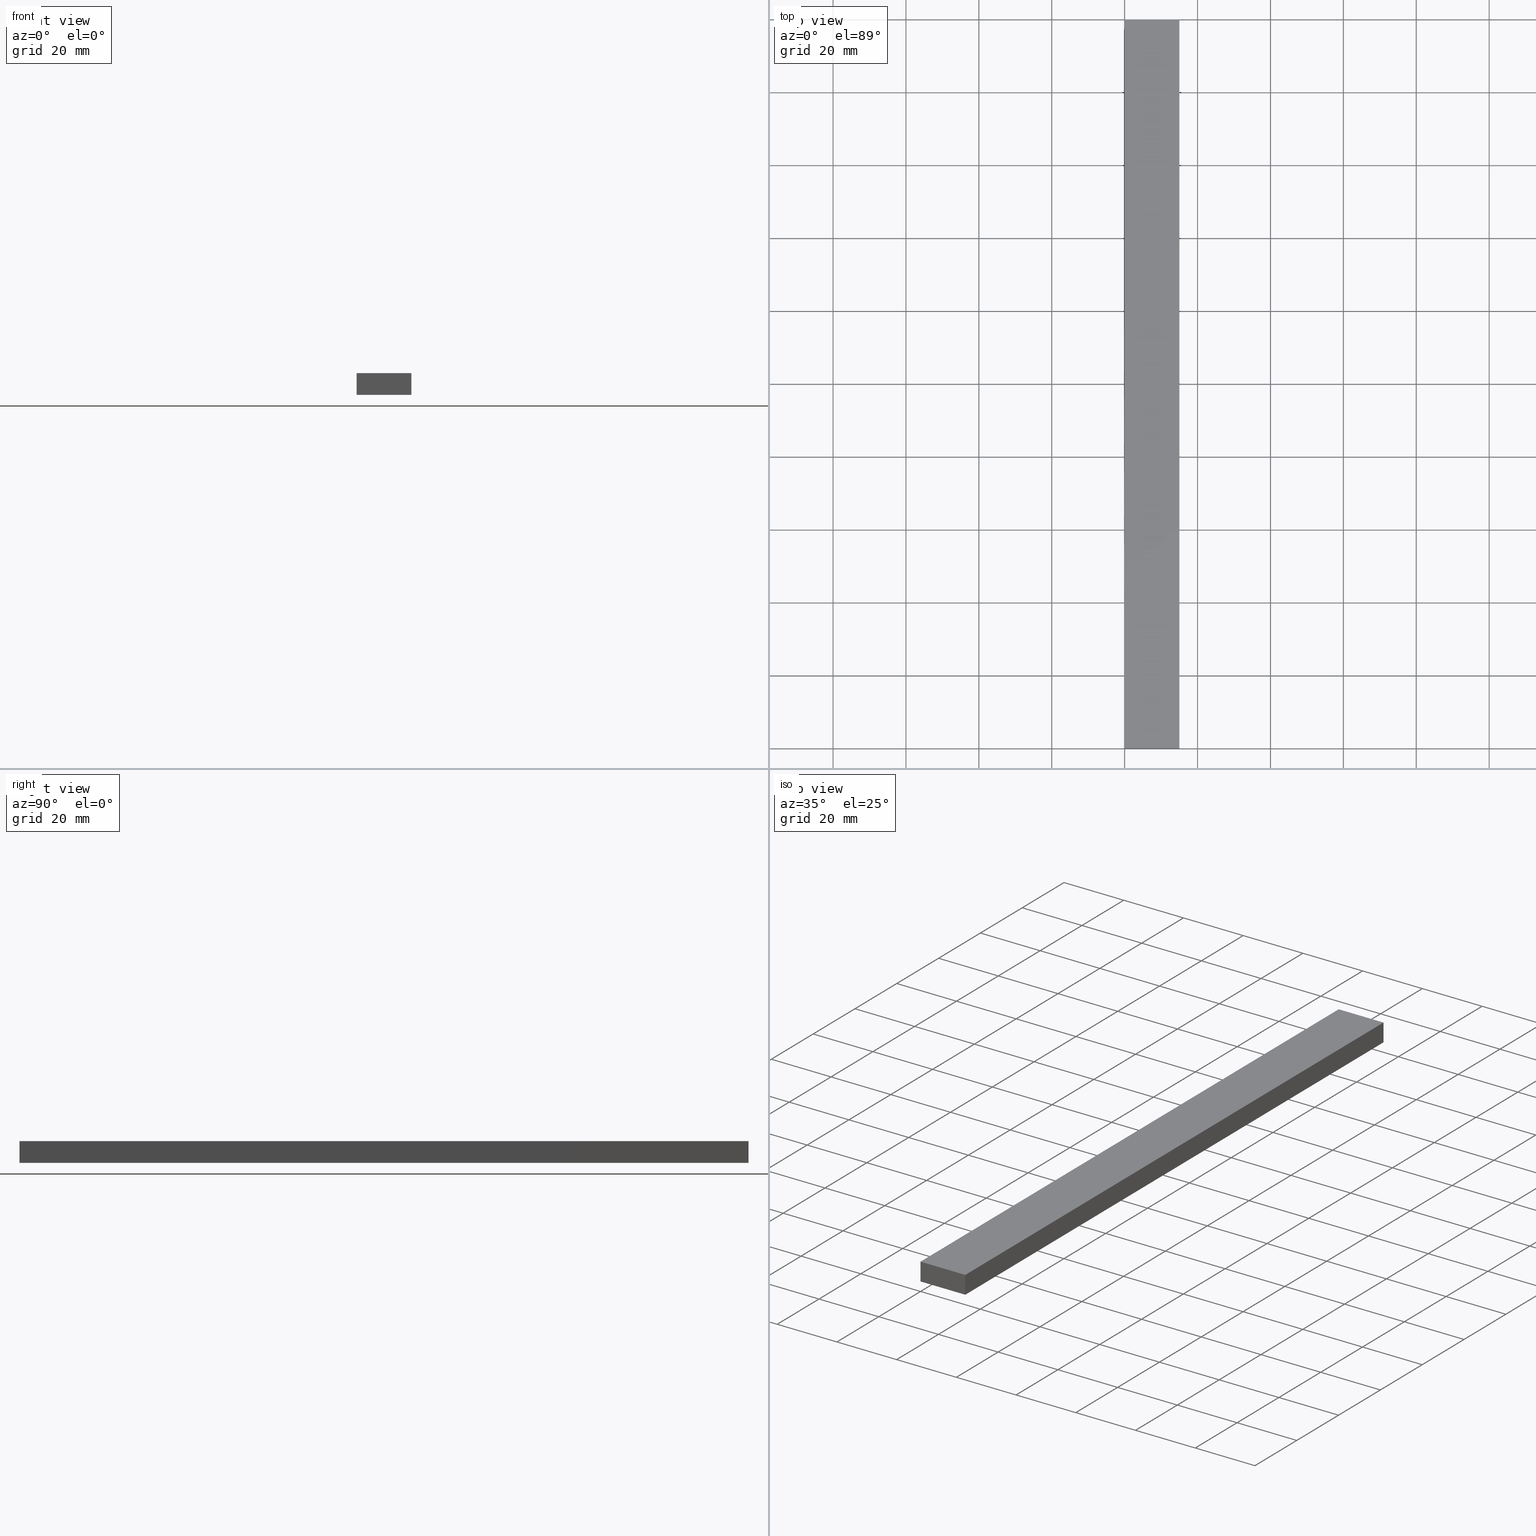
[diagram: canonical four-view strip — front | top / right | iso, engineering-drawing reading convention]
A machine part, canonical four-view strip (front | top / right | iso — engineering-drawing reading convention). The complete STEP part file that produces these views, byte-faithful:
ISO-10303-21;
HEADER;
/****************************************************************
 * Generated by software with PDE/Lib inside                    *
 * PDElib Version v5.1, created Sun 05/01/2005                  *
 * International Technegroup Inc. (www.iti-oh.com)              *
 ****************************************************************/
FILE_DESCRIPTION((''),'2;1');
FILE_NAME('','2008-01-20T09:45:20',(''),(''),'','CADfix','');
FILE_SCHEMA(('AUTOMOTIVE_DESIGN { 1 0 10303 214 1 1 1 1 }'));
ENDSEC;
DATA;
#5=CARTESIAN_POINT('',(-0.749249970927090,0.0,6.299699988370837));
#6=CARTESIAN_POINT('',(15.749250373258439,0.0,6.299699988370837));
#7=CARTESIAN_POINT('',(-0.749249970927090,0.0,-0.299700149303377));
#8=CARTESIAN_POINT('',(15.749250373258439,0.0,-0.299700149303377));
#9=B_SPLINE_SURFACE_WITH_KNOTS('',1,1,((#5,#7),(#6,#8)),.UNSPECIFIED.,.F.,.F.,.U.,(2,2),(2,2),(0.0,16.498500344185530),(0.0,6.599400137674214),.UNSPECIFIED.);
#10=CARTESIAN_POINT('',(0.0,0.0,6.0));
#11=VERTEX_POINT('',#10);
#12=CARTESIAN_POINT('',(15.0,0.0,6.0));
#13=VERTEX_POINT('',#12);
#14=CARTESIAN_POINT('',(0.0,0.0,6.0));
#15=CARTESIAN_POINT('',(15.0,0.0,6.0));
#16=QUASI_UNIFORM_CURVE('',1,(#14,#15),.UNSPECIFIED.,.F.,.U.);
#17=EDGE_CURVE('',#11,#13,#16,.T.);
#18=ORIENTED_EDGE('',*,*,#17,.F.);
#19=CARTESIAN_POINT('',(0.0,0.0,0.0));
#20=VERTEX_POINT('',#19);
#21=CARTESIAN_POINT('',(0.0,0.0,0.0));
#22=CARTESIAN_POINT('',(0.0,0.0,6.0));
#23=QUASI_UNIFORM_CURVE('',1,(#21,#22),.UNSPECIFIED.,.F.,.U.);
#24=EDGE_CURVE('',#20,#11,#23,.T.);
#25=ORIENTED_EDGE('',*,*,#24,.F.);
#26=CARTESIAN_POINT('',(15.0,0.0,0.0));
#27=VERTEX_POINT('',#26);
#28=CARTESIAN_POINT('',(15.0,0.0,0.0));
#29=CARTESIAN_POINT('',(0.0,0.0,0.0));
#30=QUASI_UNIFORM_CURVE('',1,(#28,#29),.UNSPECIFIED.,.F.,.U.);
#31=EDGE_CURVE('',#27,#20,#30,.T.);
#32=ORIENTED_EDGE('',*,*,#31,.F.);
#33=CARTESIAN_POINT('',(15.0,0.0,6.0));
#34=CARTESIAN_POINT('',(15.0,0.0,0.0));
#35=QUASI_UNIFORM_CURVE('',1,(#33,#34),.UNSPECIFIED.,.F.,.U.);
#36=EDGE_CURVE('',#13,#27,#35,.T.);
#37=ORIENTED_EDGE('',*,*,#36,.F.);
#38=EDGE_LOOP('',(#18,#25,#32,#37));
#39=FACE_OUTER_BOUND('',#38,.T.);
#40=ADVANCED_FACE('',(#39),#9,.F.);
#41=CARTESIAN_POINT('',(-0.749249970927090,200.0,6.299699988370837));
#42=CARTESIAN_POINT('',(15.749250373258439,200.0,6.299699988370837));
#43=CARTESIAN_POINT('',(-0.749249970927090,200.0,-0.299700149303377));
#44=CARTESIAN_POINT('',(15.749250373258439,200.0,-0.299700149303377));
#45=B_SPLINE_SURFACE_WITH_KNOTS('',1,1,((#41,#43),(#42,#44)),.UNSPECIFIED.,.F.,.F.,.U.,(2,2),(2,2),(0.0,16.498500344185530),(0.0,6.599400137674214),.UNSPECIFIED.);
#46=CARTESIAN_POINT('',(0.0,200.0,6.0));
#47=VERTEX_POINT('',#46);
#48=CARTESIAN_POINT('',(15.0,200.0,6.0));
#49=VERTEX_POINT('',#48);
#50=CARTESIAN_POINT('',(0.0,200.0,6.0));
#51=CARTESIAN_POINT('',(15.0,200.0,6.0));
#52=QUASI_UNIFORM_CURVE('',1,(#50,#51),.UNSPECIFIED.,.F.,.U.);
#53=EDGE_CURVE('',#47,#49,#52,.T.);
#54=ORIENTED_EDGE('',*,*,#53,.T.);
#55=CARTESIAN_POINT('',(15.0,200.0,0.0));
#56=VERTEX_POINT('',#55);
#57=CARTESIAN_POINT('',(15.0,200.0,6.0));
#58=CARTESIAN_POINT('',(15.0,200.0,0.0));
#59=QUASI_UNIFORM_CURVE('',1,(#57,#58),.UNSPECIFIED.,.F.,.U.);
#60=EDGE_CURVE('',#49,#56,#59,.T.);
#61=ORIENTED_EDGE('',*,*,#60,.T.);
#62=CARTESIAN_POINT('',(0.0,200.0,0.0));
#63=VERTEX_POINT('',#62);
#64=CARTESIAN_POINT('',(15.0,200.0,0.0));
#65=CARTESIAN_POINT('',(0.0,200.0,0.0));
#66=QUASI_UNIFORM_CURVE('',1,(#64,#65),.UNSPECIFIED.,.F.,.U.);
#67=EDGE_CURVE('',#56,#63,#66,.T.);
#68=ORIENTED_EDGE('',*,*,#67,.T.);
#69=CARTESIAN_POINT('',(0.0,200.0,0.0));
#70=CARTESIAN_POINT('',(0.0,200.0,6.0));
#71=QUASI_UNIFORM_CURVE('',1,(#69,#70),.UNSPECIFIED.,.F.,.U.);
#72=EDGE_CURVE('',#63,#47,#71,.T.);
#73=ORIENTED_EDGE('',*,*,#72,.T.);
#74=EDGE_LOOP('',(#54,#61,#68,#73));
#75=FACE_OUTER_BOUND('',#74,.T.);
#76=ADVANCED_FACE('',(#75),#45,.T.);
#77=CARTESIAN_POINT('',(0.0,-9.989999612361194,6.299699988370837));
#78=CARTESIAN_POINT('',(0.0,-9.989999612361194,-0.299700149303376));
#79=CARTESIAN_POINT('',(0.0,209.990004976779200,6.299699988370837));
#80=CARTESIAN_POINT('',(0.0,209.990004976779200,-0.299700149303376));
#81=B_SPLINE_SURFACE_WITH_KNOTS('',1,1,((#77,#79),(#78,#80)),.UNSPECIFIED.,.F.,.F.,.U.,(2,2),(2,2),(0.0,6.599400137674214),(0.0,219.980004589140410),.UNSPECIFIED.);
#82=ORIENTED_EDGE('',*,*,#24,.T.);
#83=CARTESIAN_POINT('',(0.0,200.0,6.0));
#84=CARTESIAN_POINT('',(0.0,0.0,6.0));
#85=QUASI_UNIFORM_CURVE('',1,(#83,#84),.UNSPECIFIED.,.F.,.U.);
#86=EDGE_CURVE('',#47,#11,#85,.T.);
#87=ORIENTED_EDGE('',*,*,#86,.F.);
#88=ORIENTED_EDGE('',*,*,#72,.F.);
#89=CARTESIAN_POINT('',(0.0,200.0,0.0));
#90=CARTESIAN_POINT('',(0.0,0.0,0.0));
#91=QUASI_UNIFORM_CURVE('',1,(#89,#90),.UNSPECIFIED.,.F.,.U.);
#92=EDGE_CURVE('',#63,#20,#91,.T.);
#93=ORIENTED_EDGE('',*,*,#92,.T.);
#94=EDGE_LOOP('',(#82,#87,#88,#93));
#95=FACE_OUTER_BOUND('',#94,.T.);
#96=ADVANCED_FACE('',(#95),#81,.F.);
#97=CARTESIAN_POINT('',(-0.749249970927090,-9.989999612361171,0.0));
#98=CARTESIAN_POINT('',(15.749250373258439,-9.989999612361171,0.0));
#99=CARTESIAN_POINT('',(-0.749249970927090,209.990004976779200,0.0));
#100=CARTESIAN_POINT('',(15.749250373258439,209.990004976779200,0.0));
#101=B_SPLINE_SURFACE_WITH_KNOTS('',1,1,((#97,#99),(#98,#100)),.UNSPECIFIED.,.F.,.F.,.U.,(2,2),(2,2),(0.0,16.498500344185530),(0.0,219.980004589140410),.UNSPECIFIED.);
#102=ORIENTED_EDGE('',*,*,#31,.T.);
#103=ORIENTED_EDGE('',*,*,#92,.F.);
#104=ORIENTED_EDGE('',*,*,#67,.F.);
#105=CARTESIAN_POINT('',(15.0,200.0,0.0));
#106=CARTESIAN_POINT('',(15.0,0.0,0.0));
#107=QUASI_UNIFORM_CURVE('',1,(#105,#106),.UNSPECIFIED.,.F.,.U.);
#108=EDGE_CURVE('',#56,#27,#107,.T.);
#109=ORIENTED_EDGE('',*,*,#108,.T.);
#110=EDGE_LOOP('',(#102,#103,#104,#109));
#111=FACE_OUTER_BOUND('',#110,.T.);
#112=ADVANCED_FACE('',(#111),#101,.F.);
#113=CARTESIAN_POINT('',(15.0,-9.989999612361171,-0.299699988370836));
#114=CARTESIAN_POINT('',(15.0,-9.989999612361171,6.299700149303376));
#115=CARTESIAN_POINT('',(15.0,209.990004976779200,-0.299699988370836));
#116=CARTESIAN_POINT('',(15.0,209.990004976779200,6.299700149303376));
#117=B_SPLINE_SURFACE_WITH_KNOTS('',1,1,((#113,#115),(#114,#116)),.UNSPECIFIED.,.F.,.F.,.U.,(2,2),(2,2),(0.0,6.599400137674212),(0.0,219.980004589140410),.UNSPECIFIED.);
#118=ORIENTED_EDGE('',*,*,#36,.T.);
#119=ORIENTED_EDGE('',*,*,#108,.F.);
#120=ORIENTED_EDGE('',*,*,#60,.F.);
#121=CARTESIAN_POINT('',(15.0,200.0,6.0));
#122=CARTESIAN_POINT('',(15.0,0.0,6.0));
#123=QUASI_UNIFORM_CURVE('',1,(#121,#122),.UNSPECIFIED.,.F.,.U.);
#124=EDGE_CURVE('',#49,#13,#123,.T.);
#125=ORIENTED_EDGE('',*,*,#124,.T.);
#126=EDGE_LOOP('',(#118,#119,#120,#125));
#127=FACE_OUTER_BOUND('',#126,.T.);
#128=ADVANCED_FACE('',(#127),#117,.F.);
#129=CARTESIAN_POINT('',(15.749249970927091,-9.989999612361194,6.0));
#130=CARTESIAN_POINT('',(-0.749250373258442,-9.989999612361194,6.0));
#131=CARTESIAN_POINT('',(15.749249970927091,209.990004976779200,6.0));
#132=CARTESIAN_POINT('',(-0.749250373258442,209.990004976779200,6.0));
#133=B_SPLINE_SURFACE_WITH_KNOTS('',1,1,((#129,#131),(#130,#132)),.UNSPECIFIED.,.F.,.F.,.U.,(2,2),(2,2),(0.0,16.498500344185530),(0.0,219.980004589140410),.UNSPECIFIED.);
#134=ORIENTED_EDGE('',*,*,#17,.T.);
#135=ORIENTED_EDGE('',*,*,#124,.F.);
#136=ORIENTED_EDGE('',*,*,#53,.F.);
#137=ORIENTED_EDGE('',*,*,#86,.T.);
#138=EDGE_LOOP('',(#134,#135,#136,#137));
#139=FACE_OUTER_BOUND('',#138,.T.);
#140=ADVANCED_FACE('',(#139),#133,.F.);
#141=CLOSED_SHELL('',(#40,#76,#96,#112,#128,#140));
#142=MANIFOLD_SOLID_BREP('rubber foam',#141);
#148=(NAMED_UNIT(*)PLANE_ANGLE_UNIT()SI_UNIT($,.RADIAN.));
#149=DIMENSIONAL_EXPONENTS(0.0,0.0,0.0,0.0,0.0,0.0,0.0);
#150=PLANE_ANGLE_MEASURE_WITH_UNIT(PLANE_ANGLE_MEASURE(0.017453292500000),#148);
#154=(CONVERSION_BASED_UNIT('DEGREE',#150)NAMED_UNIT(#149)PLANE_ANGLE_UNIT());
#158=(NAMED_UNIT(*)SI_UNIT($,.STERADIAN.)SOLID_ANGLE_UNIT());
#162=(LENGTH_UNIT()NAMED_UNIT(*)SI_UNIT(.MILLI.,.METRE.));
#164=UNCERTAINTY_MEASURE_WITH_UNIT(LENGTH_MEASURE(0.001000000000000),#162,'DISTANCE_ACCURACY_VALUE','');
#166=(GEOMETRIC_REPRESENTATION_CONTEXT(3)GLOBAL_UNCERTAINTY_ASSIGNED_CONTEXT((#164))GLOBAL_UNIT_ASSIGNED_CONTEXT((#154,#158,#162))REPRESENTATION_CONTEXT('','3D'));
#167=ADVANCED_BREP_SHAPE_REPRESENTATION('',(#142),#166);
#168=APPLICATION_CONTEXT('automotive design');
#169=APPLICATION_PROTOCOL_DEFINITION('International Standard','automotive_design',2001,#168);
#170=PRODUCT_CONTEXT('',#168,'mechanical');
#171=PRODUCT('67109034','',$,(#170));
#172=PRODUCT_RELATED_PRODUCT_CATEGORY('part',$,(#171));
#173=PRODUCT_DEFINITION_FORMATION('',$,#171);
#174=PRODUCT_DEFINITION_CONTEXT('part definition',#168,'design');
#175=DOCUMENT_TYPE('cad_filename');
#176=DOCUMENT('67109039','step_model',$,#175);
#177=PRODUCT_DEFINITION_WITH_ASSOCIATED_DOCUMENTS('',$,#173,#174,(#176));
#178=PRODUCT_DEFINITION_SHAPE('',$,#177);
#179=SHAPE_DEFINITION_REPRESENTATION(#178,#167);
ENDSEC;
END-ISO-10303-21;
